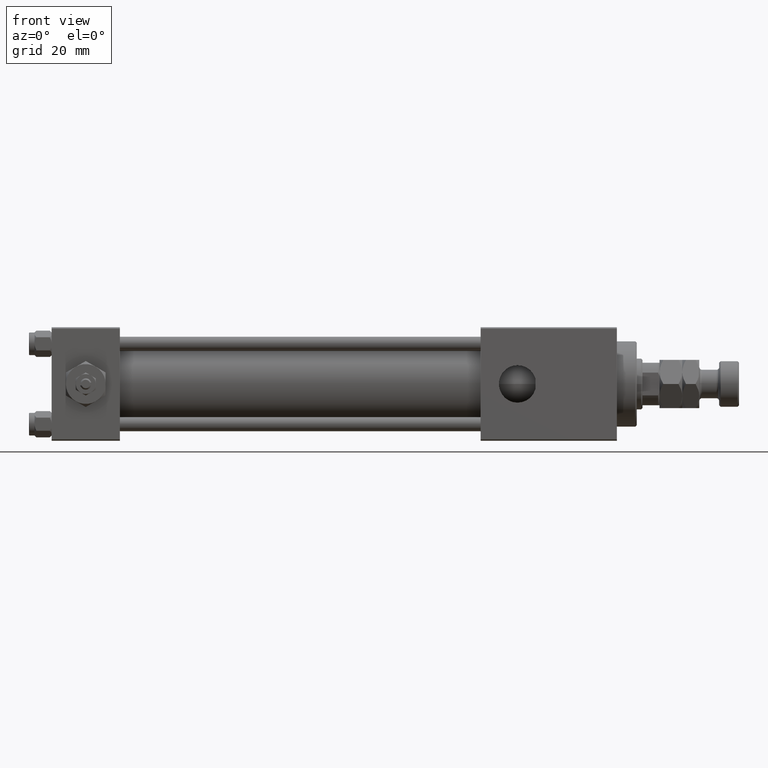
[diagram: clean part render]
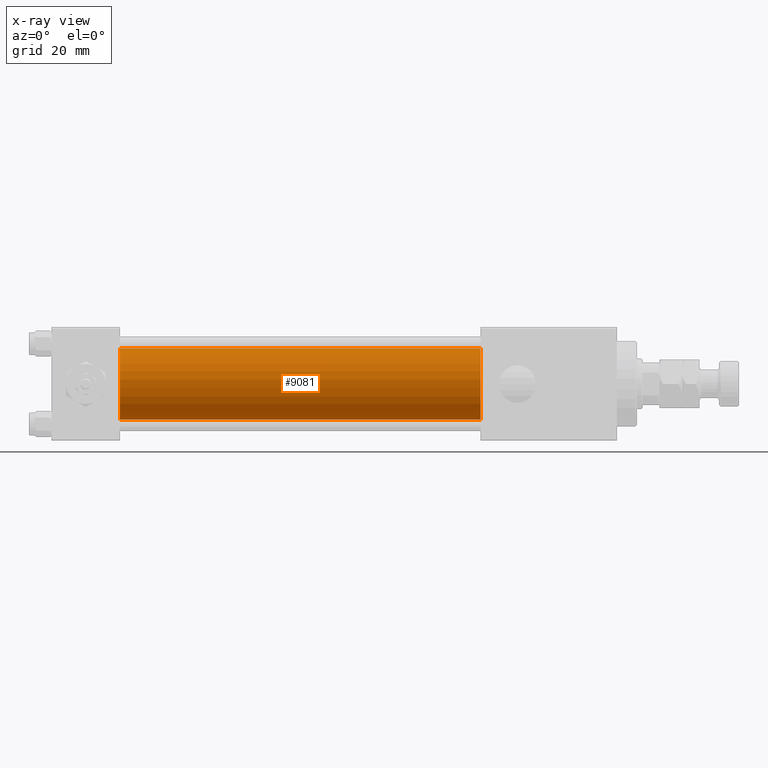
[diagram: x-ray — body ghosted, one internal face saturated and labeled with its STEP entity id]
A machine part, front view, then the same camera in x-ray: the body is ghosted and one INTERNAL B-rep face — a face not visible from any outside direction — is saturated and labeled: STEP entity #9081.
In plain terms, the highlighted cylindrical surface (edge-blend (fillet) strip) has radius 12.5 mm, axis along (-1, -0, -0).
Its self-contained STEP definition (entity closure, byte-faithful):
#112 = VERTEX_POINT ( 'NONE', #47122 ) ;
#711 = ORIENTED_EDGE ( 'NONE', *, *, #17133, .T. ) ;
#1493 = EDGE_CURVE ( 'NONE', #112, #29603, #1622, .T. ) ;
#1622 = CIRCLE ( 'NONE', #5954, 12.49999999999999645 ) ;
#5954 = AXIS2_PLACEMENT_3D ( 'NONE', #28089, #32407, #15924 ) ;
#6068 = CARTESIAN_POINT ( 'NONE',  ( 24.00000000000000000, -2.602085213965210642E-15, 12.49999999999999645 ) ) ;
#7148 = EDGE_LOOP ( 'NONE', ( #46141, #711, #16552, #40472 ) ) ;
#7388 = VECTOR ( 'NONE', #11381, 1000.000000000000000 ) ;
#7476 = VERTEX_POINT ( 'NONE', #6068 ) ;
#9081 = ADVANCED_FACE ( 'NONE', ( #33509 ), #50044, .F. ) ;
#11381 = DIRECTION ( 'NONE',  ( -1.000000000000000000, -0.000000000000000000, -0.000000000000000000 ) ) ;
#13387 = CARTESIAN_POINT ( 'NONE',  ( 24.00000000000000000, -1.071276715031019515E-15, -12.49999999999999645 ) ) ;
#15442 = LINE ( 'NONE', #48459, #7388 ) ;
#15924 = DIRECTION ( 'NONE',  ( 0.000000000000000000, 0.000000000000000000, -1.000000000000000000 ) ) ;
#16552 = ORIENTED_EDGE ( 'NONE', *, *, #41767, .F. ) ;
#17133 = EDGE_CURVE ( 'NONE', #29603, #26684, #15442, .T. ) ;
#21329 = DIRECTION ( 'NONE',  ( 0.000000000000000000, 0.000000000000000000, 1.000000000000000000 ) ) ;
#22061 = EDGE_CURVE ( 'NONE', #112, #7476, #41947, .T. ) ;
#22403 = DIRECTION ( 'NONE',  ( 0.000000000000000000, 0.000000000000000000, -1.000000000000000000 ) ) ;
#25638 = DIRECTION ( 'NONE',  ( 1.000000000000000000, 0.000000000000000000, 0.000000000000000000 ) ) ;
#26684 = VERTEX_POINT ( 'NONE', #13387 ) ;
#28007 = AXIS2_PLACEMENT_3D ( 'NONE', #34573, #25638, #22403 ) ;
#28089 = CARTESIAN_POINT ( 'NONE',  ( 151.0000000000000000, -2.602085213965210642E-15, 0.000000000000000000 ) ) ;
#29445 = CARTESIAN_POINT ( 'NONE',  ( 151.0000000000000000, -2.602085213965210642E-15, 0.000000000000000000 ) ) ;
#29603 = VERTEX_POINT ( 'NONE', #49932 ) ;
#32328 = CIRCLE ( 'NONE', #28007, 12.49999999999999645 ) ;
#32407 = DIRECTION ( 'NONE',  ( 1.000000000000000000, 0.000000000000000000, 0.000000000000000000 ) ) ;
#33509 = FACE_OUTER_BOUND ( 'NONE', #7148, .T. ) ;
#33814 = DIRECTION ( 'NONE',  ( -1.000000000000000000, -0.000000000000000000, -0.000000000000000000 ) ) ;
#34573 = CARTESIAN_POINT ( 'NONE',  ( 24.00000000000000000, -2.602085213965210642E-15, 0.000000000000000000 ) ) ;
#37871 = CARTESIAN_POINT ( 'NONE',  ( 151.0000000000000000, -2.602085213965210642E-15, 12.49999999999999645 ) ) ;
#40472 = ORIENTED_EDGE ( 'NONE', *, *, #22061, .F. ) ;
#41767 = EDGE_CURVE ( 'NONE', #7476, #26684, #32328, .T. ) ;
#41947 = LINE ( 'NONE', #37871, #42967 ) ;
#42967 = VECTOR ( 'NONE', #33814, 1000.000000000000000 ) ;
#45855 = AXIS2_PLACEMENT_3D ( 'NONE', #29445, #45971, #21329 ) ;
#45971 = DIRECTION ( 'NONE',  ( -1.000000000000000000, -0.000000000000000000, -0.000000000000000000 ) ) ;
#46141 = ORIENTED_EDGE ( 'NONE', *, *, #1493, .T. ) ;
#47122 = CARTESIAN_POINT ( 'NONE',  ( 151.0000000000000000, -2.602085213965210642E-15, 12.49999999999999645 ) ) ;
#48459 = CARTESIAN_POINT ( 'NONE',  ( 151.0000000000000000, -1.071276715031019515E-15, -12.49999999999999645 ) ) ;
#49932 = CARTESIAN_POINT ( 'NONE',  ( 151.0000000000000000, -1.071276715031019515E-15, -12.49999999999999645 ) ) ;
#50044 = CYLINDRICAL_SURFACE ( 'NONE', #45855, 12.49999999999999645 ) ;